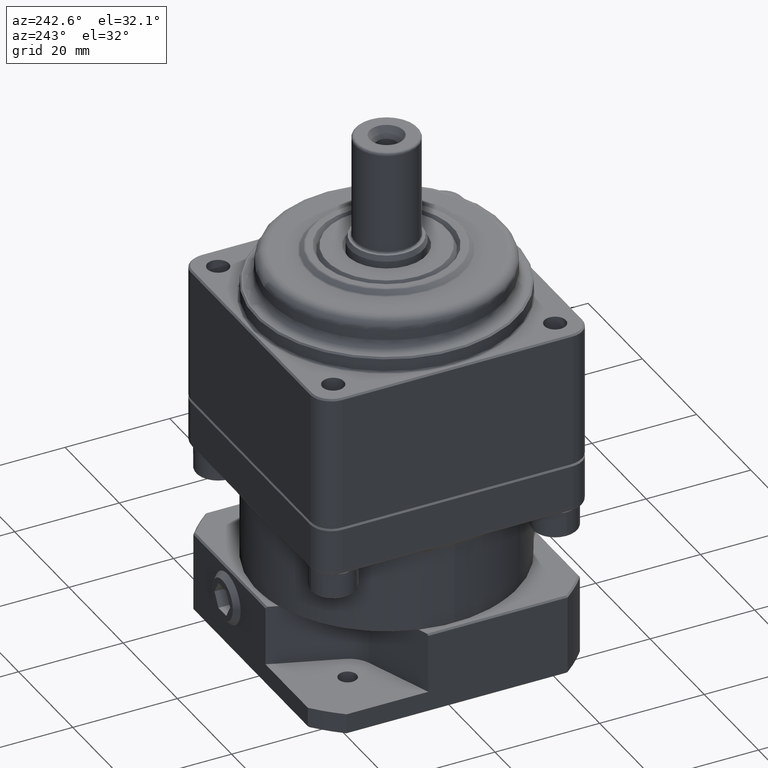
[diagram: clean part render]
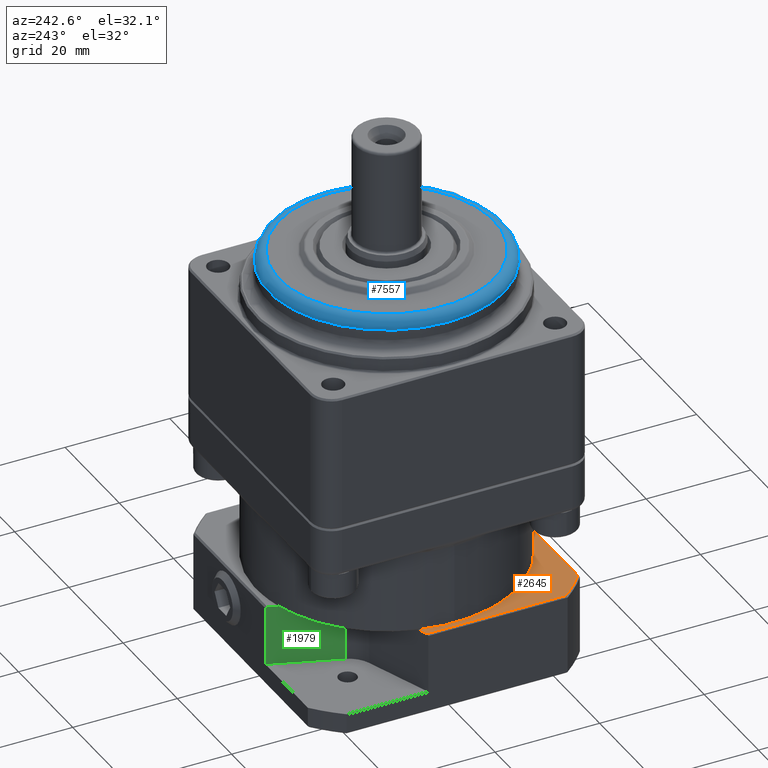
[diagram: same view with three faces highlighted in distinct colors, each labeled with its STEP entity id]
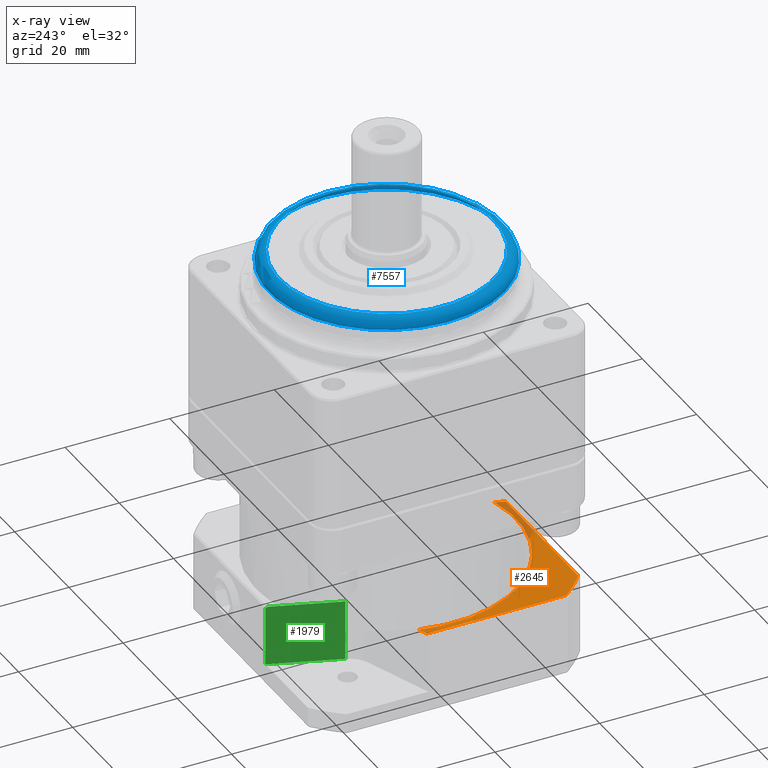
[diagram: x-ray of the same camera — body ghosted, the three highlighted faces saturated]
A machine part, auxiliary view with three faces highlighted in distinct colors.
The next image is the same camera in x-ray (body ghosted, the three faces saturated) — at least one of them is partly hidden behind the body in this view.
Their STEP definitions:

[orange] entity #2645 — the highlighted planar face has unit normal (0, 0, 1).
#1596=CARTESIAN_POINT('',(6.267384641084128,-23.891628026585021,-26.000000000000007));
#1597=VERTEX_POINT('',#1596);
#1604=CARTESIAN_POINT('',(5.609191070279833,-25.700000000000003,-26.000000000000007));
#1605=VERTEX_POINT('',#1604);
#1606=CARTESIAN_POINT('',(5.609191070279834,-25.700000000000003,-26.000000000000007));
#1607=DIRECTION('',(0.342020143325671,0.939692620785907,0.0));
#1608=VECTOR('',#1607,1.92442925847663);
#1609=LINE('',#1606,#1608);
#1610=EDGE_CURVE('',#1605,#1597,#1609,.T.);
#1863=CARTESIAN_POINT('',(-23.891628026585021,6.267384641084131,-26.000000000000007));
#1864=VERTEX_POINT('',#1863);
#1888=CARTESIAN_POINT('',(-25.700000000000003,5.609191070279838,-26.000000000000007));
#1889=VERTEX_POINT('',#1888);
#1896=CARTESIAN_POINT('',(-23.891628026585018,6.26738464108413,-26.000000000000007));
#1897=DIRECTION('',(-0.939692620785908,-0.342020143325671,0.0));
#1898=VECTOR('',#1897,1.92442925847663);
#1899=LINE('',#1896,#1898);
#1900=EDGE_CURVE('',#1864,#1889,#1899,.T.);
#2241=CARTESIAN_POINT('',(-21.017849556983709,-25.700000000000003,-26.000000000000007));
#2242=VERTEX_POINT('',#2241);
#2243=CARTESIAN_POINT('',(5.609191070279833,-25.700000000000003,-26.000000000000007));
#2244=DIRECTION('',(-1.0,0.0,0.0));
#2245=VECTOR('',#2244,26.627040627263547);
#2246=LINE('',#2243,#2245);
#2247=EDGE_CURVE('',#1605,#2242,#2246,.T.);
#2613=CARTESIAN_POINT('',(-9.714451E-016,5.551115E-016,-26.000000000000007));
#2614=DIRECTION('',(0.0,0.0,1.0));
#2615=DIRECTION('',(1.0,0.0,0.0));
#2616=AXIS2_PLACEMENT_3D('',#2613,#2614,#2615);
#2617=PLANE('',#2616);
#2618=CARTESIAN_POINT('',(0.0,-3.504869E-031,-25.999999999999996));
#2619=DIRECTION('',(0.0,0.0,1.0));
#2620=DIRECTION('',(1.0,0.0,0.0));
#2621=AXIS2_PLACEMENT_3D('',#2618,#2619,#2620);
#2622=CIRCLE('',#2621,24.700000000000003);
#2623=EDGE_CURVE('',#1864,#1597,#2622,.T.);
#2624=ORIENTED_EDGE('',*,*,#2623,.F.);
#2625=ORIENTED_EDGE('',*,*,#1900,.T.);
#2626=CARTESIAN_POINT('',(-25.700000000000003,-21.017849556983705,-26.000000000000007));
#2627=VERTEX_POINT('',#2626);
#2628=CARTESIAN_POINT('',(-25.700000000000003,-21.017849556983705,-26.000000000000007));
#2629=DIRECTION('',(0.0,1.0,0.0));
#2630=VECTOR('',#2629,26.627040627263543);
#2631=LINE('',#2628,#2630);
#2632=EDGE_CURVE('',#2627,#1889,#2631,.T.);
#2633=ORIENTED_EDGE('',*,*,#2632,.F.);
#2634=CARTESIAN_POINT('',(0.0,-3.504869E-031,-26.000000000000007));
#2635=DIRECTION('',(0.0,0.0,-1.0));
#2636=DIRECTION('',(-1.0,0.0,0.0));
#2637=AXIS2_PLACEMENT_3D('',#2634,#2635,#2636);
#2638=CIRCLE('',#2637,33.20000000000001);
#2639=EDGE_CURVE('',#2242,#2627,#2638,.T.);
#2640=ORIENTED_EDGE('',*,*,#2639,.F.);
#2641=ORIENTED_EDGE('',*,*,#2247,.F.);
#2642=ORIENTED_EDGE('',*,*,#1610,.T.);
#2643=EDGE_LOOP('',(#2624,#2625,#2633,#2640,#2641,#2642));
#2644=FACE_OUTER_BOUND('',#2643,.T.);
#2645=ADVANCED_FACE('',(#2644),#2617,.T.);

[blue] entity #7557 — the highlighted toroidal blend (fillet) surface has major radius 20.5 mm and minor (blend) radius 2 mm.
#7164=CARTESIAN_POINT('',(20.5,-2.510526E-015,35.000000000000007));
#7165=VERTEX_POINT('',#7164);
#7166=CARTESIAN_POINT('',(0.0,0.0,35.000000000000007));
#7167=DIRECTION('',(0.0,0.0,-1.0));
#7168=DIRECTION('',(-1.0,0.0,0.0));
#7169=AXIS2_PLACEMENT_3D('',#7166,#7167,#7168);
#7170=CIRCLE('',#7169,20.5);
#7171=EDGE_CURVE('',#7165,#7165,#7170,.T.);
#7360=CARTESIAN_POINT('',(22.5,2.755455E-015,33.0));
#7361=VERTEX_POINT('',#7360);
#7362=CARTESIAN_POINT('',(0.0,0.0,33.0));
#7363=DIRECTION('',(0.0,0.0,1.0));
#7364=DIRECTION('',(-1.0,0.0,0.0));
#7365=AXIS2_PLACEMENT_3D('',#7362,#7363,#7364);
#7366=CIRCLE('',#7365,22.5);
#7367=EDGE_CURVE('',#7361,#7361,#7366,.T.);
#7546=CARTESIAN_POINT('',(0.0,0.0,33.0));
#7547=DIRECTION('',(0.0,0.0,-1.0));
#7548=DIRECTION('',(-1.0,0.0,0.0));
#7549=AXIS2_PLACEMENT_3D('',#7546,#7547,#7548);
#7550=TOROIDAL_SURFACE('',#7549,20.5,2.0);
#7551=ORIENTED_EDGE('',*,*,#7171,.T.);
#7552=EDGE_LOOP('',(#7551));
#7553=FACE_OUTER_BOUND('',#7552,.T.);
#7554=ORIENTED_EDGE('',*,*,#7367,.T.);
#7555=EDGE_LOOP('',(#7554));
#7556=FACE_BOUND('',#7555,.T.);
#7557=ADVANCED_FACE('',(#7553,#7556),#7550,.T.);

[green] entity #1979 — the highlighted planar face has unit normal (0.9397, -0.342, 0).
#1643=CARTESIAN_POINT('',(-6.267384641084124,23.891628026585021,-26.000000000000007));
#1644=VERTEX_POINT('',#1643);
#1670=CARTESIAN_POINT('',(-5.609191070279829,25.700000000000003,-26.000000000000007));
#1671=VERTEX_POINT('',#1670);
#1678=CARTESIAN_POINT('',(-5.609191070279831,25.700000000000006,-26.000000000000007));
#1679=DIRECTION('',(-0.342020143325671,-0.939692620785908,0.0));
#1680=VECTOR('',#1679,1.92442925847663);
#1681=LINE('',#1678,#1680);
#1682=EDGE_CURVE('',#1671,#1644,#1681,.T.);
#1821=CARTESIAN_POINT('',(-10.172913443531126,13.16127583083232,-25.999999999999996));
#1822=VERTEX_POINT('',#1821);
#1832=CARTESIAN_POINT('',(-10.172913443531129,13.16127583083232,-37.500000000000007));
#1833=VERTEX_POINT('',#1832);
#1834=CARTESIAN_POINT('',(-10.172913443531126,13.16127583083232,-26.0));
#1835=DIRECTION('',(0.0,0.0,-1.0));
#1836=VECTOR('',#1835,11.500000000000007);
#1837=LINE('',#1834,#1836);
#1838=EDGE_CURVE('',#1822,#1833,#1837,.T.);
#1911=CARTESIAN_POINT('',(-5.499999999999968,26.0,-37.5));
#1912=VERTEX_POINT('',#1911);
#1913=CARTESIAN_POINT('',(-10.172913443531128,13.16127583083232,-37.500000000000007));
#1914=DIRECTION('',(0.342020143325672,0.939692620785907,0.0));
#1915=VECTOR('',#1914,13.662684887777539);
#1916=LINE('',#1913,#1915);
#1917=EDGE_CURVE('',#1833,#1912,#1916,.T.);
#1949=CARTESIAN_POINT('',(-10.970346503911276,10.970346503911285,-26.000000000000007));
#1950=DIRECTION('',(0.939692620785907,-0.342020143325672,4.610522E-033));
#1951=DIRECTION('',(0.0,0.0,1.0));
#1952=AXIS2_PLACEMENT_3D('',#1949,#1950,#1951);
#1953=PLANE('',#1952);
#1954=CARTESIAN_POINT('',(-6.267384641084123,23.891628026585021,-25.999999999999996));
#1955=DIRECTION('',(-0.342020143325672,-0.939692620785907,0.0));
#1956=VECTOR('',#1955,11.419002297558134);
#1957=LINE('',#1954,#1956);
#1958=EDGE_CURVE('',#1644,#1822,#1957,.T.);
#1959=ORIENTED_EDGE('',*,*,#1958,.F.);
#1960=ORIENTED_EDGE('',*,*,#1682,.F.);
#1961=CARTESIAN_POINT('',(-5.499999999999968,26.0,-26.300000000000004));
#1962=VERTEX_POINT('',#1961);
#1963=CARTESIAN_POINT('',(-5.499999999999969,26.0,-26.300000000000004));
#1964=DIRECTION('',(-0.249243569363954,-0.684791078771732,0.68479107877174));
#1965=VECTOR('',#1964,0.438089819362263);
#1966=LINE('',#1963,#1965);
#1967=EDGE_CURVE('',#1962,#1671,#1966,.T.);
#1968=ORIENTED_EDGE('',*,*,#1967,.F.);
#1969=CARTESIAN_POINT('',(-5.499999999999965,26.000000000000007,-37.5));
#1970=DIRECTION('',(0.0,0.0,1.0));
#1971=VECTOR('',#1970,11.199999999999992);
#1972=LINE('',#1969,#1971);
#1973=EDGE_CURVE('',#1912,#1962,#1972,.T.);
#1974=ORIENTED_EDGE('',*,*,#1973,.F.);
#1975=ORIENTED_EDGE('',*,*,#1917,.F.);
#1976=ORIENTED_EDGE('',*,*,#1838,.F.);
#1977=EDGE_LOOP('',(#1959,#1960,#1968,#1974,#1975,#1976));
#1978=FACE_OUTER_BOUND('',#1977,.T.);
#1979=ADVANCED_FACE('',(#1978),#1953,.F.);